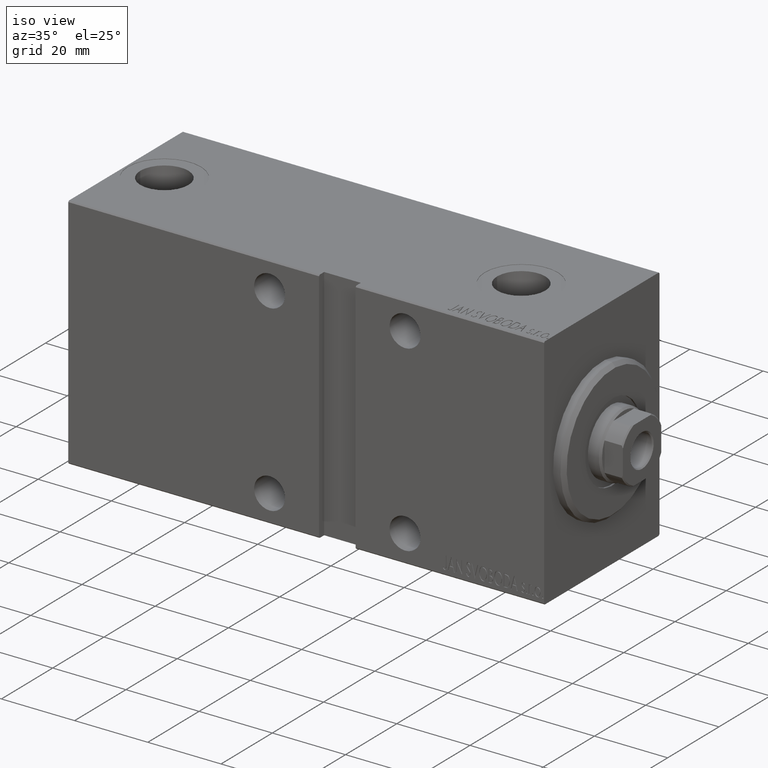
[diagram: clean part render]
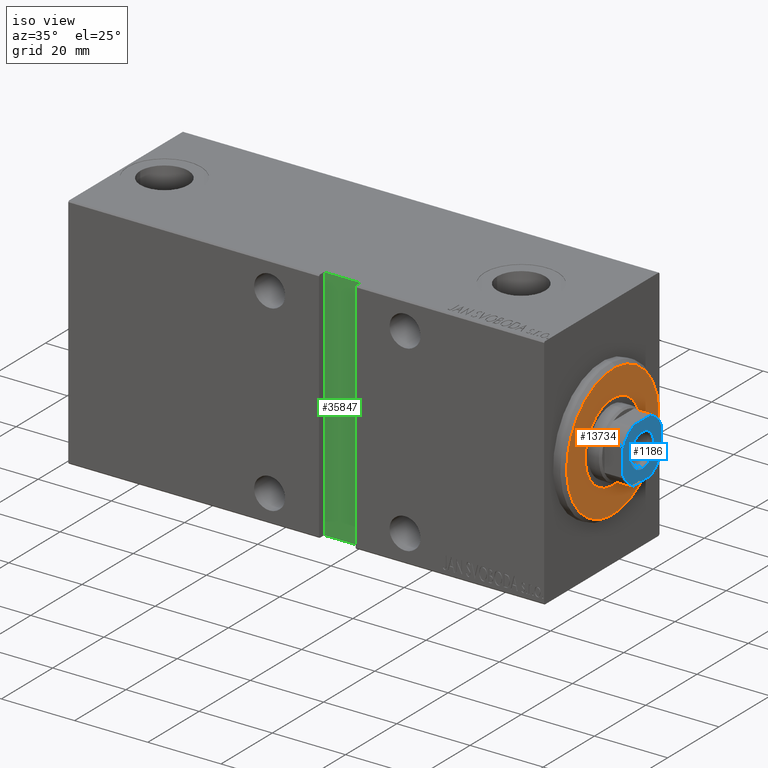
[diagram: same view with three faces highlighted in distinct colors, each labeled with its STEP entity id]
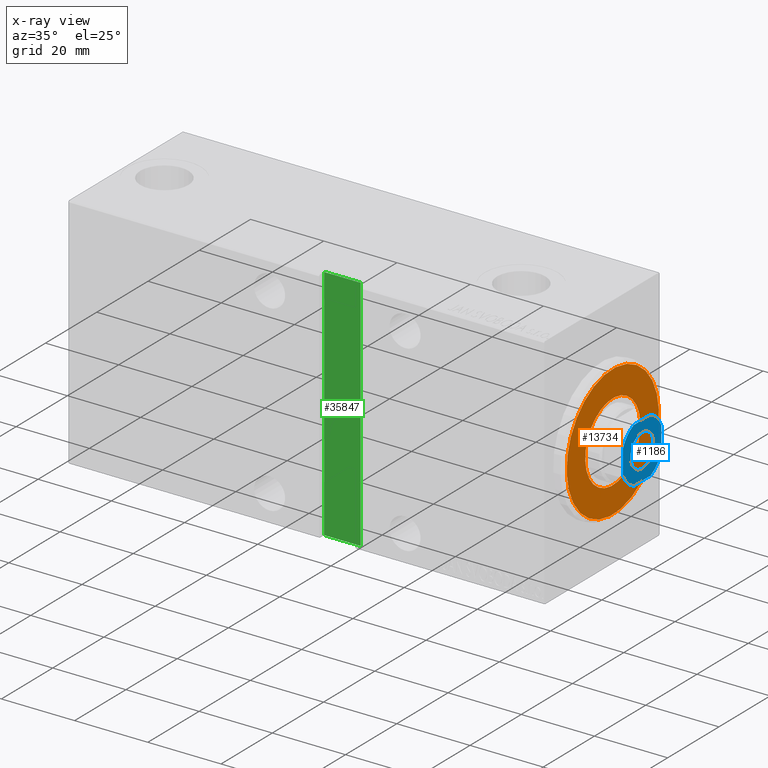
[diagram: x-ray of the same camera — body ghosted, the three highlighted faces saturated]
A machine part, iso view with three faces highlighted in distinct colors.
The next image is the same camera in x-ray (body ghosted, the three faces saturated) — at least one of them is partly hidden behind the body in this view.
Their STEP definitions:

[orange] entity #13734 — the highlighted planar face has unit normal (1, -0, -0).
#300 = FACE_OUTER_BOUND ( 'NONE', #19035, .T. ) ;
#1231 = DIRECTION ( 'NONE',  ( 0.000000000000000000, 0.000000000000000000, -1.000000000000000000 ) ) ;
#3683 = FACE_BOUND ( 'NONE', #7581, .T. ) ;
#6874 = CARTESIAN_POINT ( 'NONE',  ( 3.000000000000000000, 0.000000000000000000, 17.99999999999999645 ) ) ;
#7581 = EDGE_LOOP ( 'NONE', ( #35279, #8022 ) ) ;
#8022 = ORIENTED_EDGE ( 'NONE', *, *, #36086, .F. ) ;
#8714 = DIRECTION ( 'NONE',  ( 0.000000000000000000, 0.000000000000000000, -1.000000000000000000 ) ) ;
#9322 = DIRECTION ( 'NONE',  ( 1.000000000000000000, -0.000000000000000000, 0.000000000000000000 ) ) ;
#9604 = DIRECTION ( 'NONE',  ( 1.000000000000000000, -0.000000000000000000, 0.000000000000000000 ) ) ;
#10252 = CARTESIAN_POINT ( 'NONE',  ( 3.000000000000000000, 2.265596578422603002E-15, -17.99999999999999645 ) ) ;
#10654 = DIRECTION ( 'NONE',  ( 1.000000000000000000, -0.000000000000000000, 0.000000000000000000 ) ) ;
#11394 = VERTEX_POINT ( 'NONE', #6874 ) ;
#11789 = CIRCLE ( 'NONE', #17570, 17.99999999999999645 ) ;
#12254 = CARTESIAN_POINT ( 'NONE',  ( 3.000000000000000000, 0.000000000000000000, 0.000000000000000000 ) ) ;
#13734 = ADVANCED_FACE ( 'NONE', ( #300, #3683 ), #38358, .T. ) ;
#16810 = AXIS2_PLACEMENT_3D ( 'NONE', #32828, #9604, #8714 ) ;
#17421 = DIRECTION ( 'NONE',  ( 0.000000000000000000, 0.000000000000000000, -1.000000000000000000 ) ) ;
#17570 = AXIS2_PLACEMENT_3D ( 'NONE', #12254, #9322, #26002 ) ;
#17652 = CARTESIAN_POINT ( 'NONE',  ( 3.000000000000000000, 0.000000000000000000, 0.000000000000000000 ) ) ;
#18133 = CARTESIAN_POINT ( 'NONE',  ( 3.000000000000000000, 0.000000000000000000, 0.000000000000000000 ) ) ;
#19035 = EDGE_LOOP ( 'NONE', ( #38493, #35138 ) ) ;
#19124 = CARTESIAN_POINT ( 'NONE',  ( 3.000000000000000000, 0.000000000000000000, 0.000000000000000000 ) ) ;
#20119 = AXIS2_PLACEMENT_3D ( 'NONE', #18133, #25108, #1231 ) ;
#20305 = AXIS2_PLACEMENT_3D ( 'NONE', #17652, #10654, #17421 ) ;
#21780 = EDGE_CURVE ( 'NONE', #11394, #25313, #11789, .T. ) ;
#22248 = EDGE_CURVE ( 'NONE', #25313, #11394, #39130, .T. ) ;
#22317 = CIRCLE ( 'NONE', #20119, 10.75000000000000000 ) ;
#25108 = DIRECTION ( 'NONE',  ( 1.000000000000000000, 0.000000000000000000, 0.000000000000000000 ) ) ;
#25313 = VERTEX_POINT ( 'NONE', #10252 ) ;
#25789 = CARTESIAN_POINT ( 'NONE',  ( 3.000000000000000000, 1.316495309083404618E-15, 10.75000000000000000 ) ) ;
#26002 = DIRECTION ( 'NONE',  ( 0.000000000000000000, 0.000000000000000000, -1.000000000000000000 ) ) ;
#30168 = VERTEX_POINT ( 'NONE', #44493 ) ;
#30338 = VERTEX_POINT ( 'NONE', #25789 ) ;
#31269 = DIRECTION ( 'NONE',  ( 0.000000000000000000, 0.000000000000000000, -1.000000000000000000 ) ) ;
#32828 = CARTESIAN_POINT ( 'NONE',  ( 3.000000000000000000, 0.000000000000000000, 0.000000000000000000 ) ) ;
#32864 = DIRECTION ( 'NONE',  ( 1.000000000000000000, 0.000000000000000000, 0.000000000000000000 ) ) ;
#35138 = ORIENTED_EDGE ( 'NONE', *, *, #22248, .T. ) ;
#35279 = ORIENTED_EDGE ( 'NONE', *, *, #35562, .F. ) ;
#35562 = EDGE_CURVE ( 'NONE', #30168, #30338, #42435, .T. ) ;
#36086 = EDGE_CURVE ( 'NONE', #30338, #30168, #22317, .T. ) ;
#38358 = PLANE ( 'NONE',  #20305 ) ;
#38493 = ORIENTED_EDGE ( 'NONE', *, *, #21780, .T. ) ;
#39130 = CIRCLE ( 'NONE', #16810, 17.99999999999999645 ) ;
#42435 = CIRCLE ( 'NONE', #43877, 10.75000000000000000 ) ;
#43877 = AXIS2_PLACEMENT_3D ( 'NONE', #19124, #32864, #31269 ) ;
#44493 = CARTESIAN_POINT ( 'NONE',  ( 3.000000000000000000, 0.000000000000000000, -10.75000000000000000 ) ) ;

[blue] entity #1186 — the highlighted planar face has unit normal (1, 0, -0).
#462 = DIRECTION ( 'NONE',  ( 1.000000000000000000, 0.000000000000000000, 0.000000000000000000 ) ) ;
#515 = VECTOR ( 'NONE', #16331, 1000.000000000000000 ) ;
#716 = VECTOR ( 'NONE', #31405, 1000.000000000000000 ) ;
#1186 = ADVANCED_FACE ( 'NONE', ( #31888, #35717 ), #8660, .T. ) ;
#1428 = ORIENTED_EDGE ( 'NONE', *, *, #31255, .T. ) ;
#1574 = CARTESIAN_POINT ( 'NONE',  ( -7.500000000000000888, 3.315116890850168030, 135.0000000000000000 ) ) ;
#1695 = DIRECTION ( 'NONE',  ( -0.000000000000000000, 0.000000000000000000, 1.000000000000000000 ) ) ;
#1713 = ORIENTED_EDGE ( 'NONE', *, *, #43759, .T. ) ;
#2205 = CARTESIAN_POINT ( 'NONE',  ( 0.000000000000000000, 0.000000000000000000, 135.0000000000000000 ) ) ;
#2252 = CARTESIAN_POINT ( 'NONE',  ( 3.315116890850226206, -7.499999999999996447, 135.0000000000000000 ) ) ;
#2815 = CARTESIAN_POINT ( 'NONE',  ( -7.500000000000001776, 7.500000000000001776, 135.0000000000000000 ) ) ;
#2995 = VECTOR ( 'NONE', #37067, 1000.000000000000000 ) ;
#3108 = EDGE_CURVE ( 'NONE', #5556, #37490, #5121, .T. ) ;
#5121 = CIRCLE ( 'NONE', #23075, 4.549999999999984723 ) ;
#5556 = VERTEX_POINT ( 'NONE', #37039 ) ;
#5696 = CARTESIAN_POINT ( 'NONE',  ( 0.000000000000000000, 0.000000000000000000, 135.0000000000000000 ) ) ;
#5762 = EDGE_CURVE ( 'NONE', #37490, #5556, #16503, .T. ) ;
#6436 = EDGE_CURVE ( 'NONE', #18827, #15129, #17891, .T. ) ;
#6453 = DIRECTION ( 'NONE',  ( 1.000000000000000000, 0.000000000000000000, 0.000000000000000000 ) ) ;
#6784 = CIRCLE ( 'NONE', #20439, 8.200000000000025935 ) ;
#7347 = ORIENTED_EDGE ( 'NONE', *, *, #11334, .T. ) ;
#7889 = ORIENTED_EDGE ( 'NONE', *, *, #32679, .T. ) ;
#8655 = EDGE_LOOP ( 'NONE', ( #7347, #7889, #1713, #41143, #1428, #37579, #13056, #38217 ) ) ;
#8660 = PLANE ( 'NONE',  #38788 ) ;
#8727 = DIRECTION ( 'NONE',  ( 1.000000000000000000, 0.000000000000000000, 0.000000000000000000 ) ) ;
#9641 = EDGE_CURVE ( 'NONE', #34566, #18827, #32444, .T. ) ;
#9694 = VERTEX_POINT ( 'NONE', #1574 ) ;
#10262 = DIRECTION ( 'NONE',  ( 0.000000000000000000, -0.000000000000000000, -1.000000000000000000 ) ) ;
#11173 = VERTEX_POINT ( 'NONE', #19277 ) ;
#11334 = EDGE_CURVE ( 'NONE', #33460, #33518, #30520, .T. ) ;
#11825 = DIRECTION ( 'NONE',  ( 1.000000000000000000, 0.000000000000000000, 0.000000000000000000 ) ) ;
#11912 = EDGE_CURVE ( 'NONE', #11173, #9694, #14513, .T. ) ;
#12158 = ORIENTED_EDGE ( 'NONE', *, *, #3108, .T. ) ;
#13015 = CARTESIAN_POINT ( 'NONE',  ( -7.499999999999999112, -3.315116890850124065, 135.0000000000000000 ) ) ;
#13056 = ORIENTED_EDGE ( 'NONE', *, *, #6436, .T. ) ;
#13984 = CARTESIAN_POINT ( 'NONE',  ( 0.000000000000000000, 0.000000000000000000, 135.0000000000000000 ) ) ;
#14220 = DIRECTION ( 'NONE',  ( 1.000000000000000000, 0.000000000000000000, 0.000000000000000000 ) ) ;
#14513 = CIRCLE ( 'NONE', #39676, 8.200000000000006395 ) ;
#15129 = VERTEX_POINT ( 'NONE', #2252 ) ;
#15647 = CIRCLE ( 'NONE', #40824, 8.199999999999988631 ) ;
#16270 = DIRECTION ( 'NONE',  ( 1.000000000000000000, 0.000000000000000000, 0.000000000000000000 ) ) ;
#16331 = DIRECTION ( 'NONE',  ( 1.734723475976807094E-16, -1.000000000000000000, 0.000000000000000000 ) ) ;
#16503 = CIRCLE ( 'NONE', #20089, 4.549999999999984723 ) ;
#17129 = DIRECTION ( 'NONE',  ( -0.000000000000000000, 0.000000000000000000, 1.000000000000000000 ) ) ;
#17143 = DIRECTION ( 'NONE',  ( -0.000000000000000000, 0.000000000000000000, 1.000000000000000000 ) ) ;
#17891 = LINE ( 'NONE', #31181, #716 ) ;
#18827 = VERTEX_POINT ( 'NONE', #31175 ) ;
#19277 = CARTESIAN_POINT ( 'NONE',  ( -3.315116890850167586, 7.500000000000000888, 135.0000000000000000 ) ) ;
#19421 = DIRECTION ( 'NONE',  ( 1.000000000000000000, 0.000000000000000000, 0.000000000000000000 ) ) ;
#19641 = DIRECTION ( 'NONE',  ( 0.000000000000000000, -0.000000000000000000, -1.000000000000000000 ) ) ;
#20089 = AXIS2_PLACEMENT_3D ( 'NONE', #43507, #19641, #16270 ) ;
#20439 = AXIS2_PLACEMENT_3D ( 'NONE', #5696, #29115, #19421 ) ;
#22710 = EDGE_CURVE ( 'NONE', #15129, #33460, #6784, .T. ) ;
#23032 = VERTEX_POINT ( 'NONE', #39874 ) ;
#23075 = AXIS2_PLACEMENT_3D ( 'NONE', #23350, #10262, #6453 ) ;
#23283 = VECTOR ( 'NONE', #42931, 1000.000000000000000 ) ;
#23350 = CARTESIAN_POINT ( 'NONE',  ( 0.000000000000000000, 0.000000000000000000, 135.0000000000000000 ) ) ;
#24518 = EDGE_LOOP ( 'NONE', ( #12158, #38438 ) ) ;
#26481 = CARTESIAN_POINT ( 'NONE',  ( 7.499999999999997335, 7.500000000000000888, 135.0000000000000000 ) ) ;
#28279 = CARTESIAN_POINT ( 'NONE',  ( 0.000000000000000000, 0.000000000000000000, 135.0000000000000000 ) ) ;
#29115 = DIRECTION ( 'NONE',  ( -0.000000000000000000, 0.000000000000000000, 1.000000000000000000 ) ) ;
#29562 = CARTESIAN_POINT ( 'NONE',  ( 7.499999999999998224, 3.315116890850132059, 135.0000000000000000 ) ) ;
#30243 = AXIS2_PLACEMENT_3D ( 'NONE', #38527, #17143, #14220 ) ;
#30520 = LINE ( 'NONE', #26481, #2995 ) ;
#31175 = CARTESIAN_POINT ( 'NONE',  ( -3.315116890850128950, -7.499999999999998224, 135.0000000000000000 ) ) ;
#31181 = CARTESIAN_POINT ( 'NONE',  ( -7.499999999999999112, -7.499999999999998224, 135.0000000000000000 ) ) ;
#31255 = EDGE_CURVE ( 'NONE', #9694, #34566, #37050, .T. ) ;
#31405 = DIRECTION ( 'NONE',  ( 1.000000000000000000, 0.000000000000000000, 0.000000000000000000 ) ) ;
#31888 = FACE_BOUND ( 'NONE', #24518, .T. ) ;
#32444 = CIRCLE ( 'NONE', #30243, 8.199999999999986855 ) ;
#32587 = LINE ( 'NONE', #39564, #23283 ) ;
#32679 = EDGE_CURVE ( 'NONE', #33518, #23032, #15647, .T. ) ;
#32733 = CARTESIAN_POINT ( 'NONE',  ( 7.499999999999998224, -3.315116890850224429, 135.0000000000000000 ) ) ;
#33176 = CARTESIAN_POINT ( 'NONE',  ( -4.549999999999984723, 5.572142936120437605E-16, 135.0000000000000000 ) ) ;
#33460 = VERTEX_POINT ( 'NONE', #32733 ) ;
#33518 = VERTEX_POINT ( 'NONE', #29562 ) ;
#34566 = VERTEX_POINT ( 'NONE', #13015 ) ;
#35717 = FACE_OUTER_BOUND ( 'NONE', #8655, .T. ) ;
#37039 = CARTESIAN_POINT ( 'NONE',  ( 4.549999999999984723, 0.000000000000000000, 135.0000000000000000 ) ) ;
#37050 = LINE ( 'NONE', #2815, #515 ) ;
#37067 = DIRECTION ( 'NONE',  ( -1.156482317317871478E-16, 1.000000000000000000, -0.000000000000000000 ) ) ;
#37490 = VERTEX_POINT ( 'NONE', #33176 ) ;
#37579 = ORIENTED_EDGE ( 'NONE', *, *, #9641, .T. ) ;
#38217 = ORIENTED_EDGE ( 'NONE', *, *, #22710, .T. ) ;
#38438 = ORIENTED_EDGE ( 'NONE', *, *, #5762, .T. ) ;
#38527 = CARTESIAN_POINT ( 'NONE',  ( 0.000000000000000000, 0.000000000000000000, 135.0000000000000000 ) ) ;
#38788 = AXIS2_PLACEMENT_3D ( 'NONE', #28279, #1695, #11825 ) ;
#39564 = CARTESIAN_POINT ( 'NONE',  ( -7.500000000000001776, 7.500000000000001776, 135.0000000000000000 ) ) ;
#39597 = DIRECTION ( 'NONE',  ( -0.000000000000000000, 0.000000000000000000, 1.000000000000000000 ) ) ;
#39676 = AXIS2_PLACEMENT_3D ( 'NONE', #13984, #17129, #462 ) ;
#39874 = CARTESIAN_POINT ( 'NONE',  ( 3.315116890850126286, 7.500000000000000888, 135.0000000000000000 ) ) ;
#40824 = AXIS2_PLACEMENT_3D ( 'NONE', #2205, #39597, #8727 ) ;
#41143 = ORIENTED_EDGE ( 'NONE', *, *, #11912, .T. ) ;
#42931 = DIRECTION ( 'NONE',  ( -1.000000000000000000, 5.782411586589357392E-17, -0.000000000000000000 ) ) ;
#43507 = CARTESIAN_POINT ( 'NONE',  ( 0.000000000000000000, 0.000000000000000000, 135.0000000000000000 ) ) ;
#43759 = EDGE_CURVE ( 'NONE', #23032, #11173, #32587, .T. ) ;

[green] entity #35847 — the highlighted planar face has unit normal (0, -1, -0).
#96 = ORIENTED_EDGE ( 'NONE', *, *, #40825, .F. ) ;
#161 = CARTESIAN_POINT ( 'NONE',  ( 51.50000000000001421, 20.49999999999999645, 32.50000000000000000 ) ) ;
#941 = VECTOR ( 'NONE', #15152, 1000.000000000000000 ) ;
#1284 = VECTOR ( 'NONE', #4560, 1000.000000000000000 ) ;
#2214 = ORIENTED_EDGE ( 'NONE', *, *, #10161, .T. ) ;
#2352 = VECTOR ( 'NONE', #4927, 1000.000000000000000 ) ;
#2396 = PLANE ( 'NONE',  #4341 ) ;
#4341 = AXIS2_PLACEMENT_3D ( 'NONE', #39561, #25825, #19069 ) ;
#4560 = DIRECTION ( 'NONE',  ( -2.135044278125300850E-16, 0.000000000000000000, -1.000000000000000000 ) ) ;
#4927 = DIRECTION ( 'NONE',  ( 0.000000000000000000, 0.000000000000000000, -1.000000000000000000 ) ) ;
#4993 = CARTESIAN_POINT ( 'NONE',  ( 61.50000000000000711, 20.49999999999999645, 32.50000000000000000 ) ) ;
#5126 = VECTOR ( 'NONE', #6924, 1000.000000000000000 ) ;
#6924 = DIRECTION ( 'NONE',  ( 1.000000000000000000, 0.000000000000000000, 0.000000000000000000 ) ) ;
#7089 = EDGE_LOOP ( 'NONE', ( #27518, #96, #2214, #27227 ) ) ;
#10161 = EDGE_CURVE ( 'NONE', #14702, #40551, #27647, .T. ) ;
#11381 = CARTESIAN_POINT ( 'NONE',  ( 51.50000000000001421, 20.49999999999999645, 32.50000000000000000 ) ) ;
#14702 = VERTEX_POINT ( 'NONE', #11381 ) ;
#15085 = EDGE_CURVE ( 'NONE', #29125, #19150, #29717, .T. ) ;
#15152 = DIRECTION ( 'NONE',  ( 1.000000000000000000, 0.000000000000000000, 0.000000000000000000 ) ) ;
#15553 = CARTESIAN_POINT ( 'NONE',  ( 61.50000000000000711, 20.49999999999999645, 32.50000000000000000 ) ) ;
#16133 = FACE_OUTER_BOUND ( 'NONE', #7089, .T. ) ;
#19069 = DIRECTION ( 'NONE',  ( 0.000000000000000000, -0.000000000000000000, 1.000000000000000000 ) ) ;
#19150 = VERTEX_POINT ( 'NONE', #34725 ) ;
#21874 = LINE ( 'NONE', #4993, #1284 ) ;
#25825 = DIRECTION ( 'NONE',  ( -0.000000000000000000, 1.000000000000000000, 0.000000000000000000 ) ) ;
#27227 = ORIENTED_EDGE ( 'NONE', *, *, #33799, .T. ) ;
#27518 = ORIENTED_EDGE ( 'NONE', *, *, #15085, .F. ) ;
#27647 = LINE ( 'NONE', #161, #5126 ) ;
#29125 = VERTEX_POINT ( 'NONE', #29873 ) ;
#29226 = LINE ( 'NONE', #31955, #2352 ) ;
#29717 = LINE ( 'NONE', #40089, #941 ) ;
#29873 = CARTESIAN_POINT ( 'NONE',  ( 51.50000000000001421, 20.49999999999999645, -32.50000000000000000 ) ) ;
#31955 = CARTESIAN_POINT ( 'NONE',  ( 51.50000000000001421, 20.49999999999999645, 32.50000000000000000 ) ) ;
#33799 = EDGE_CURVE ( 'NONE', #40551, #19150, #21874, .T. ) ;
#34725 = CARTESIAN_POINT ( 'NONE',  ( 61.50000000000000000, 20.50000000000000000, -32.50000000000000000 ) ) ;
#35847 = ADVANCED_FACE ( 'NONE', ( #16133 ), #2396, .T. ) ;
#39561 = CARTESIAN_POINT ( 'NONE',  ( 0.000000000000000000, 20.49999999999999645, 0.000000000000000000 ) ) ;
#40089 = CARTESIAN_POINT ( 'NONE',  ( 51.50000000000001421, 20.49999999999999645, -32.50000000000000000 ) ) ;
#40551 = VERTEX_POINT ( 'NONE', #15553 ) ;
#40825 = EDGE_CURVE ( 'NONE', #14702, #29125, #29226, .T. ) ;